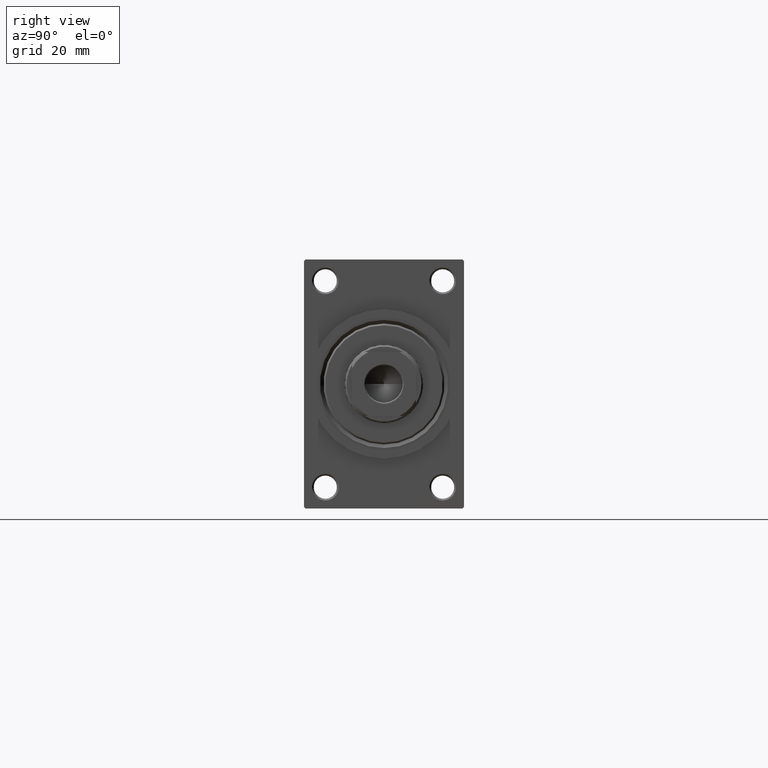
[diagram: clean part render]
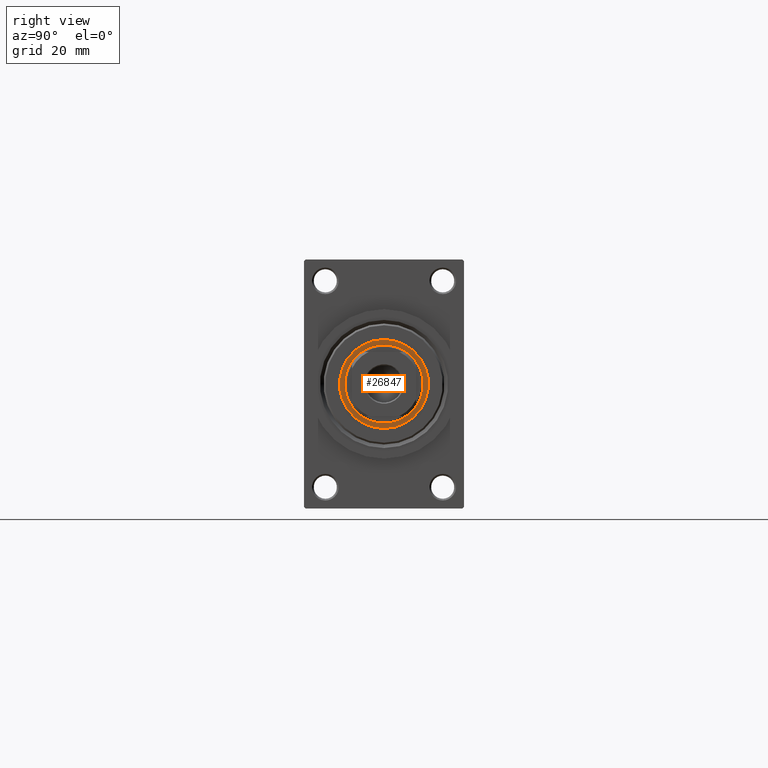
[diagram: same view with one face highlighted and labeled with its STEP entity id]
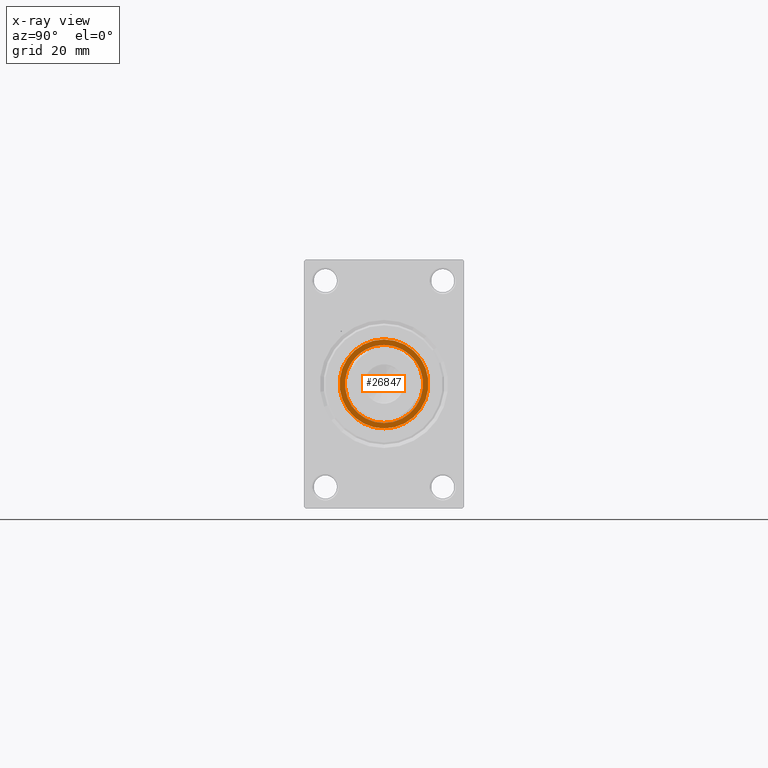
[diagram: x-ray of the same camera — body ghosted, the highlighted face saturated]
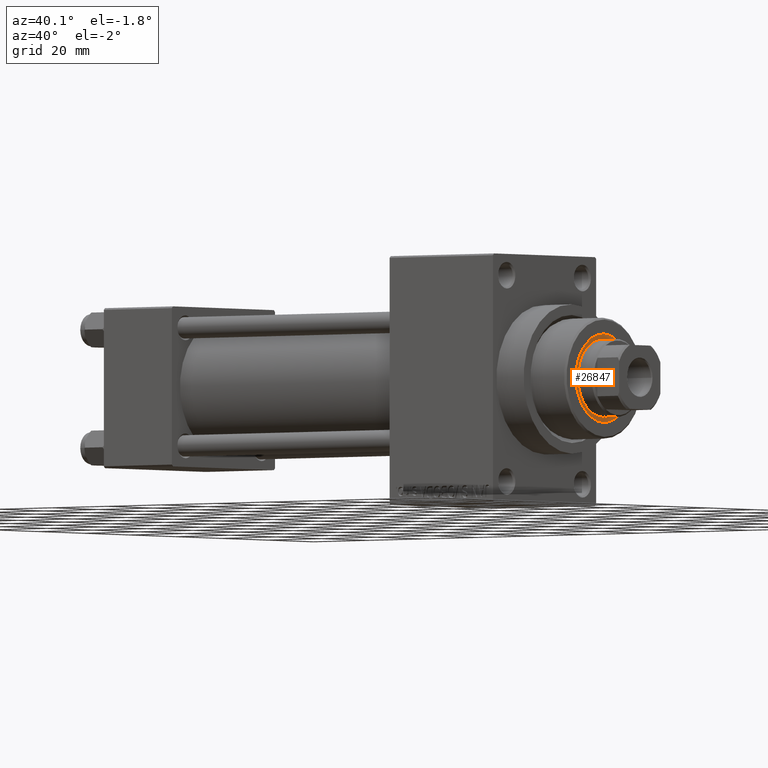
[diagram: same view with one face highlighted and labeled with its STEP entity id]
A machine part, right view. The second image highlights one B-rep face of the part: STEP entity #26847.
The next image is the same camera in x-ray: the body ghosted, the highlighted face saturated — about 0% of this face is hidden behind the body in this view.
A second angle (auxiliary view) of the same face is appended — the face is thin or edge-on in the first view.
In plain terms, the highlighted planar face has unit normal (1, -0, -0).
Its self-contained STEP definition (entity closure, byte-faithful):
#94 = AXIS2_PLACEMENT_3D ( 'NONE', #30020, #26675, #30246 ) ;
#642 = DIRECTION ( 'NONE',  ( -0.000000000000000000, -0.000000000000000000, -1.000000000000000000 ) ) ;
#749 = CARTESIAN_POINT ( 'NONE',  ( 12.50000000000000000, 0.000000000000000000, 54.76000000000000512 ) ) ;
#1644 = CARTESIAN_POINT ( 'NONE',  ( 0.000000000000000000, 0.000000000000000000, 54.76000000000000512 ) ) ;
#2522 = ORIENTED_EDGE ( 'NONE', *, *, #21267, .T. ) ;
#5411 = AXIS2_PLACEMENT_3D ( 'NONE', #36830, #39465, #18469 ) ;
#5608 = EDGE_LOOP ( 'NONE', ( #26018, #2522 ) ) ;
#6005 = CIRCLE ( 'NONE', #7544, 11.00000000000000000 ) ;
#6583 = DIRECTION ( 'NONE',  ( 1.000000000000000000, 0.000000000000000000, 0.000000000000000000 ) ) ;
#7544 = AXIS2_PLACEMENT_3D ( 'NONE', #30438, #642, #29754 ) ;
#10379 = CIRCLE ( 'NONE', #45445, 11.00000000000000000 ) ;
#11901 = FACE_BOUND ( 'NONE', #5608, .T. ) ;
#12402 = VERTEX_POINT ( 'NONE', #35317 ) ;
#18469 = DIRECTION ( 'NONE',  ( 1.000000000000000000, 0.000000000000000000, 0.000000000000000000 ) ) ;
#18597 = FACE_OUTER_BOUND ( 'NONE', #25861, .T. ) ;
#18623 = CARTESIAN_POINT ( 'NONE',  ( -11.00000000000000000, 1.347111479062088405E-15, 54.76000000000000512 ) ) ;
#19871 = CIRCLE ( 'NONE', #5411, 12.50000000000000000 ) ;
#20677 = VERTEX_POINT ( 'NONE', #749 ) ;
#21267 = EDGE_CURVE ( 'NONE', #45607, #12402, #6005, .T. ) ;
#25186 = DIRECTION ( 'NONE',  ( -0.000000000000000000, -0.000000000000000000, -1.000000000000000000 ) ) ;
#25861 = EDGE_LOOP ( 'NONE', ( #31927, #32874 ) ) ;
#26018 = ORIENTED_EDGE ( 'NONE', *, *, #41680, .T. ) ;
#26141 = CARTESIAN_POINT ( 'NONE',  ( -12.50000000000000000, 1.530808498934191521E-15, 54.76000000000000512 ) ) ;
#26217 = EDGE_CURVE ( 'NONE', #20677, #29537, #19871, .T. ) ;
#26675 = DIRECTION ( 'NONE',  ( 0.000000000000000000, 0.000000000000000000, 1.000000000000000000 ) ) ;
#26847 = ADVANCED_FACE ( 'NONE', ( #18597, #11901 ), #33606, .T. ) ;
#28054 = CARTESIAN_POINT ( 'NONE',  ( 0.000000000000000000, 0.000000000000000000, 54.76000000000000512 ) ) ;
#29537 = VERTEX_POINT ( 'NONE', #26141 ) ;
#29754 = DIRECTION ( 'NONE',  ( 1.000000000000000000, 0.000000000000000000, 0.000000000000000000 ) ) ;
#30020 = CARTESIAN_POINT ( 'NONE',  ( 0.000000000000000000, 0.000000000000000000, 54.76000000000000512 ) ) ;
#30246 = DIRECTION ( 'NONE',  ( 1.000000000000000000, 0.000000000000000000, -0.000000000000000000 ) ) ;
#30438 = CARTESIAN_POINT ( 'NONE',  ( 0.000000000000000000, 0.000000000000000000, 54.76000000000000512 ) ) ;
#31927 = ORIENTED_EDGE ( 'NONE', *, *, #26217, .T. ) ;
#32874 = ORIENTED_EDGE ( 'NONE', *, *, #34013, .T. ) ;
#33606 = PLANE ( 'NONE',  #94 ) ;
#34013 = EDGE_CURVE ( 'NONE', #29537, #20677, #44428, .T. ) ;
#35317 = CARTESIAN_POINT ( 'NONE',  ( 11.00000000000000000, 0.000000000000000000, 54.76000000000000512 ) ) ;
#36830 = CARTESIAN_POINT ( 'NONE',  ( 0.000000000000000000, 0.000000000000000000, 54.76000000000000512 ) ) ;
#38324 = AXIS2_PLACEMENT_3D ( 'NONE', #1644, #39278, #6583 ) ;
#39278 = DIRECTION ( 'NONE',  ( 0.000000000000000000, 0.000000000000000000, 1.000000000000000000 ) ) ;
#39465 = DIRECTION ( 'NONE',  ( 0.000000000000000000, 0.000000000000000000, 1.000000000000000000 ) ) ;
#39716 = DIRECTION ( 'NONE',  ( 1.000000000000000000, 0.000000000000000000, 0.000000000000000000 ) ) ;
#41680 = EDGE_CURVE ( 'NONE', #12402, #45607, #10379, .T. ) ;
#44428 = CIRCLE ( 'NONE', #38324, 12.50000000000000000 ) ;
#45445 = AXIS2_PLACEMENT_3D ( 'NONE', #28054, #25186, #39716 ) ;
#45607 = VERTEX_POINT ( 'NONE', #18623 ) ;